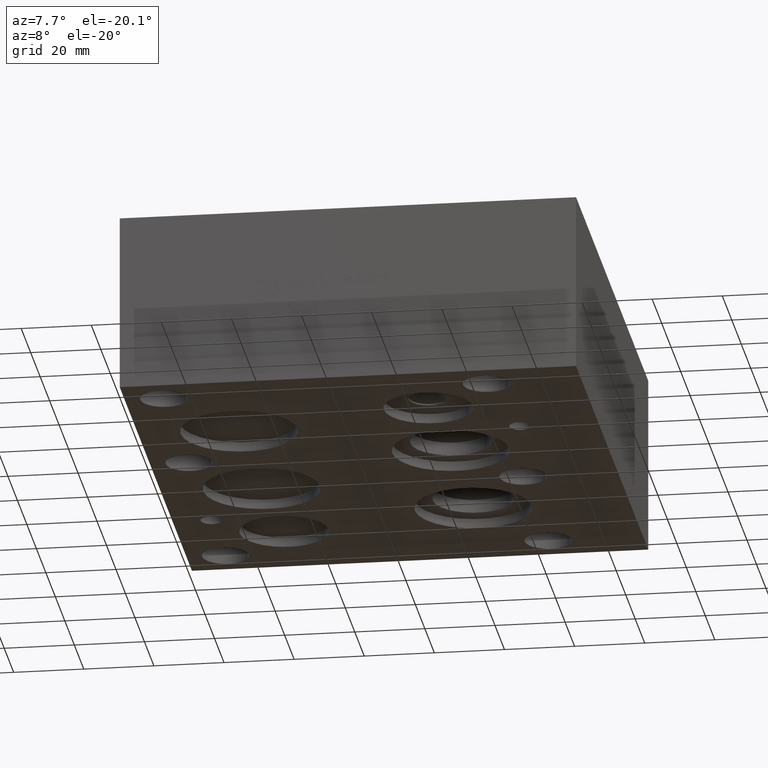
[diagram: clean part render]
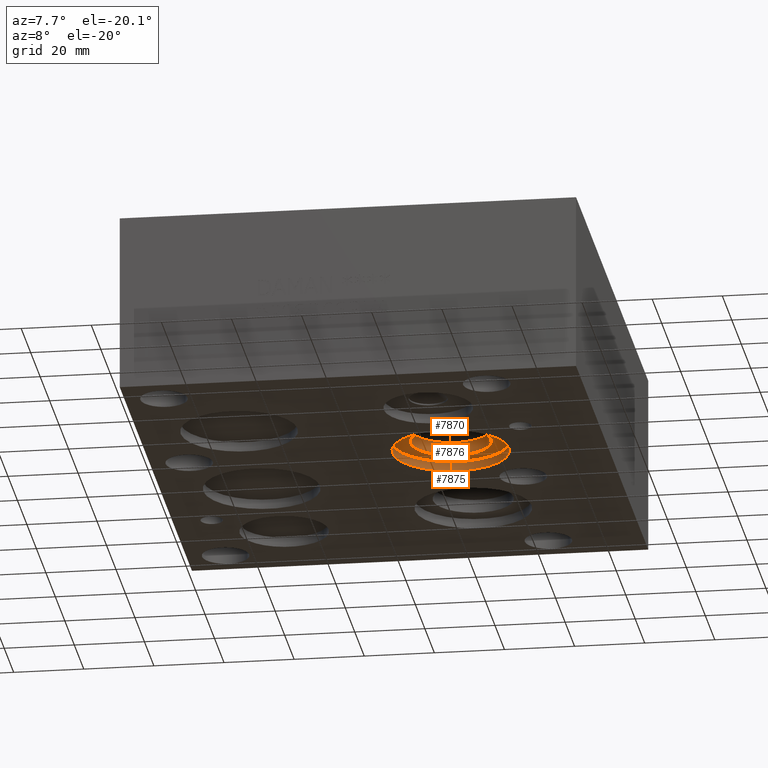
[diagram: same view with one multi-face feature highlighted, each face labeled with its STEP entity id]
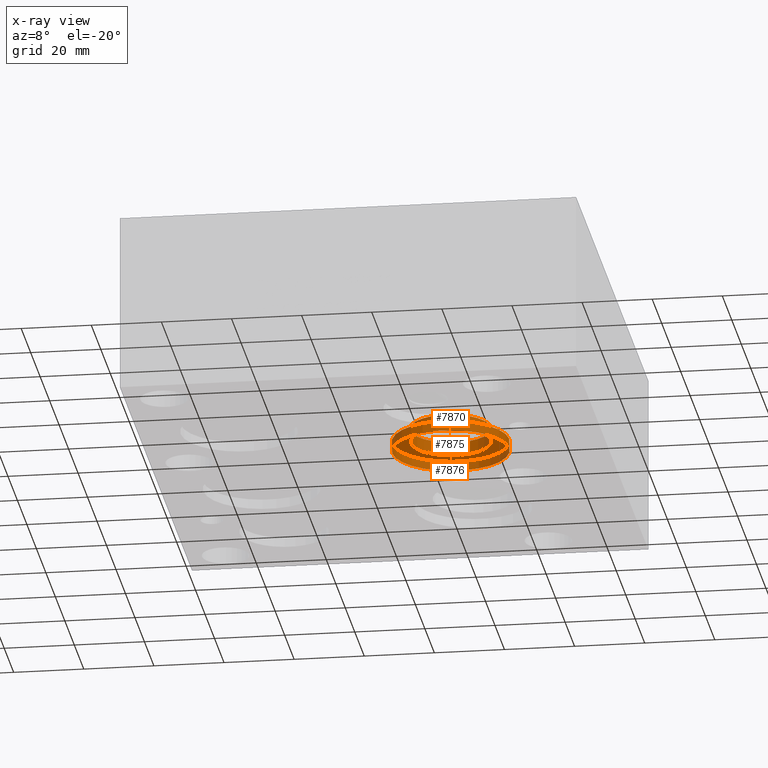
[diagram: x-ray of the same camera — body ghosted, the whole feature saturated]
A machine part, auxiliary view. The highlighted faces form ONE feature: a stepped (counterbored) hole: 2 coaxial cylindrical walls of radii 11.5062 -> 16.6751 mm joined by 1 annular planar shoulder face(s). The faces share edges in the B-rep.
The next image is the same camera in x-ray: the body ghosted and the whole hole feature saturated, so the bore chain is visible through the body.
Their STEP definitions:
[1] entity #7875 (Cylinder):
#20=CYLINDRICAL_SURFACE('',#8220,16.6751);
#77=CIRCLE('',#8221,16.6751);
#78=CIRCLE('',#8222,16.6751);
#79=CIRCLE('',#8223,16.6751);
#80=CIRCLE('',#8224,16.6751);
#933=FACE_OUTER_BOUND('',#1369,.T.);
#1369=EDGE_LOOP('',(#6554,#6555,#6556,#6557,#6558,#6559));
#2158=LINE('',#13118,#2895);
#2895=VECTOR('',#9619,16.6751);
#3552=VERTEX_POINT('',#13113);
#3553=VERTEX_POINT('',#13114);
#3554=VERTEX_POINT('',#13117);
#3555=VERTEX_POINT('',#13119);
#4596=EDGE_CURVE('',#3552,#3553,#77,.T.);
#4597=EDGE_CURVE('',#3553,#3552,#78,.T.);
#4598=EDGE_CURVE('',#3553,#3554,#2158,.T.);
#4599=EDGE_CURVE('',#3555,#3554,#79,.T.);
#4600=EDGE_CURVE('',#3554,#3555,#80,.T.);
#6554=ORIENTED_EDGE('',*,*,#4596,.F.);
#6555=ORIENTED_EDGE('',*,*,#4597,.F.);
#6556=ORIENTED_EDGE('',*,*,#4598,.T.);
#6557=ORIENTED_EDGE('',*,*,#4599,.F.);
#6558=ORIENTED_EDGE('',*,*,#4600,.F.);
#6559=ORIENTED_EDGE('',*,*,#4598,.F.);
#7875=ADVANCED_FACE('',(#933),#20,.F.);
#8220=AXIS2_PLACEMENT_3D('',#13112,#9613,#9614);
#8221=AXIS2_PLACEMENT_3D('',#13115,#9615,#9616);
#8222=AXIS2_PLACEMENT_3D('',#13116,#9617,#9618);
#8223=AXIS2_PLACEMENT_3D('',#13120,#9620,#9621);
#8224=AXIS2_PLACEMENT_3D('',#13121,#9622,#9623);
#9613=DIRECTION('center_axis',(0.,0.,-1.));
#9614=DIRECTION('ref_axis',(1.,0.,0.));
#9615=DIRECTION('center_axis',(0.,0.,1.));
#9616=DIRECTION('ref_axis',(1.,0.,0.));
#9617=DIRECTION('center_axis',(0.,0.,1.));
#9618=DIRECTION('ref_axis',(1.,0.,0.));
#9619=DIRECTION('',(0.,0.,1.));
#9620=DIRECTION('center_axis',(0.,0.,-1.));
#9621=DIRECTION('ref_axis',(1.,0.,0.));
#9622=DIRECTION('center_axis',(0.,0.,-1.));
#9623=DIRECTION('ref_axis',(1.,0.,0.));
#13112=CARTESIAN_POINT('Origin',(85.725,64.2874,1.397));
#13113=CARTESIAN_POINT('',(102.4001,64.2874,0.));
#13114=CARTESIAN_POINT('',(69.0499,64.2874,0.));
#13115=CARTESIAN_POINT('Origin',(85.725,64.2874,0.));
#13116=CARTESIAN_POINT('Origin',(85.725,64.2874,0.));
#13117=CARTESIAN_POINT('',(69.0499,64.2874,2.794));
#13118=CARTESIAN_POINT('',(69.0499,64.2874,1.397));
#13119=CARTESIAN_POINT('',(102.4001,64.2874,2.794));
#13120=CARTESIAN_POINT('Origin',(85.725,64.2874,2.794));
#13121=CARTESIAN_POINT('Origin',(85.725,64.2874,2.794));
[2] entity #7870 (Cylinder):
#17=CYLINDRICAL_SURFACE('',#8207,11.5062);
#67=CIRCLE('',#8205,11.5062);
#68=CIRCLE('',#8206,11.5062);
#69=CIRCLE('',#8208,11.5062);
#928=FACE_OUTER_BOUND('',#1364,.T.);
#1364=EDGE_LOOP('',(#6532,#6533,#6534,#6535,#6536));
#2154=LINE('',#13089,#2891);
#2891=VECTOR('',#9587,11.5062);
#3540=VERTEX_POINT('',#13080);
#3541=VERTEX_POINT('',#13081);
#3543=VERTEX_POINT('',#13087);
#4581=EDGE_CURVE('',#3540,#3541,#67,.T.);
#4583=EDGE_CURVE('',#3541,#3540,#68,.T.);
#4584=EDGE_CURVE('',#3543,#3543,#69,.T.);
#4585=EDGE_CURVE('',#3543,#3541,#2154,.T.);
#6532=ORIENTED_EDGE('',*,*,#4584,.F.);
#6533=ORIENTED_EDGE('',*,*,#4585,.T.);
#6534=ORIENTED_EDGE('',*,*,#4581,.F.);
#6535=ORIENTED_EDGE('',*,*,#4583,.F.);
#6536=ORIENTED_EDGE('',*,*,#4585,.F.);
#7870=ADVANCED_FACE('',(#928),#17,.F.);
#8205=AXIS2_PLACEMENT_3D('',#13082,#9578,#9579);
#8206=AXIS2_PLACEMENT_3D('',#13085,#9581,#9582);
#8207=AXIS2_PLACEMENT_3D('',#13086,#9583,#9584);
#8208=AXIS2_PLACEMENT_3D('',#13088,#9585,#9586);
#9578=DIRECTION('center_axis',(0.,0.,-1.));
#9579=DIRECTION('ref_axis',(1.,0.,0.));
#9581=DIRECTION('center_axis',(0.,0.,-1.));
#9582=DIRECTION('ref_axis',(1.,0.,0.));
#9583=DIRECTION('center_axis',(0.,0.,-1.));
#9584=DIRECTION('ref_axis',(1.,0.,0.));
#9585=DIRECTION('center_axis',(0.,0.,1.));
#9586=DIRECTION('ref_axis',(1.,0.,0.));
#9587=DIRECTION('',(0.,0.,1.));
#13080=CARTESIAN_POINT('',(97.2312,64.2874,6.64311));
#13081=CARTESIAN_POINT('',(74.2188,64.2874,6.64311));
#13082=CARTESIAN_POINT('Origin',(85.725,64.2874,6.64311));
#13085=CARTESIAN_POINT('Origin',(85.725,64.2874,6.64311));
#13086=CARTESIAN_POINT('Origin',(85.725,64.2874,3.321555));
#13087=CARTESIAN_POINT('',(74.2188,64.2874,2.794));
#13088=CARTESIAN_POINT('Origin',(85.725,64.2874,2.794));
#13089=CARTESIAN_POINT('',(74.2188,64.2874,3.321555));
[3] entity #7876 (Plane):
#69=CIRCLE('',#8208,11.5062);
#79=CIRCLE('',#8223,16.6751);
#80=CIRCLE('',#8224,16.6751);
#567=FACE_BOUND('',#1371,.T.);
#934=FACE_OUTER_BOUND('',#1370,.T.);
#1370=EDGE_LOOP('',(#6560,#6561));
#1371=EDGE_LOOP('',(#6562));
#3543=VERTEX_POINT('',#13087);
#3554=VERTEX_POINT('',#13117);
#3555=VERTEX_POINT('',#13119);
#4584=EDGE_CURVE('',#3543,#3543,#69,.T.);
#4599=EDGE_CURVE('',#3555,#3554,#79,.T.);
#4600=EDGE_CURVE('',#3554,#3555,#80,.T.);
#6560=ORIENTED_EDGE('',*,*,#4599,.T.);
#6561=ORIENTED_EDGE('',*,*,#4600,.T.);
#6562=ORIENTED_EDGE('',*,*,#4584,.T.);
#7230=PLANE('',#8225);
#7876=ADVANCED_FACE('',(#934,#567),#7230,.T.);
#8208=AXIS2_PLACEMENT_3D('',#13088,#9585,#9586);
#8223=AXIS2_PLACEMENT_3D('',#13120,#9620,#9621);
#8224=AXIS2_PLACEMENT_3D('',#13121,#9622,#9623);
#8225=AXIS2_PLACEMENT_3D('',#13122,#9624,#9625);
#9585=DIRECTION('center_axis',(0.,0.,1.));
#9586=DIRECTION('ref_axis',(1.,0.,0.));
#9620=DIRECTION('center_axis',(0.,0.,-1.));
#9621=DIRECTION('ref_axis',(1.,0.,0.));
#9622=DIRECTION('center_axis',(0.,0.,-1.));
#9623=DIRECTION('ref_axis',(1.,0.,0.));
#9624=DIRECTION('center_axis',(0.,0.,-1.));
#9625=DIRECTION('ref_axis',(1.,0.,0.));
#13087=CARTESIAN_POINT('',(74.2188,64.2874,2.794));
#13088=CARTESIAN_POINT('Origin',(85.725,64.2874,2.794));
#13117=CARTESIAN_POINT('',(69.0499,64.2874,2.794));
#13119=CARTESIAN_POINT('',(102.4001,64.2874,2.794));
#13120=CARTESIAN_POINT('Origin',(85.725,64.2874,2.794));
#13121=CARTESIAN_POINT('Origin',(85.725,64.2874,2.794));
#13122=CARTESIAN_POINT('Origin',(85.725,64.2874,2.794));